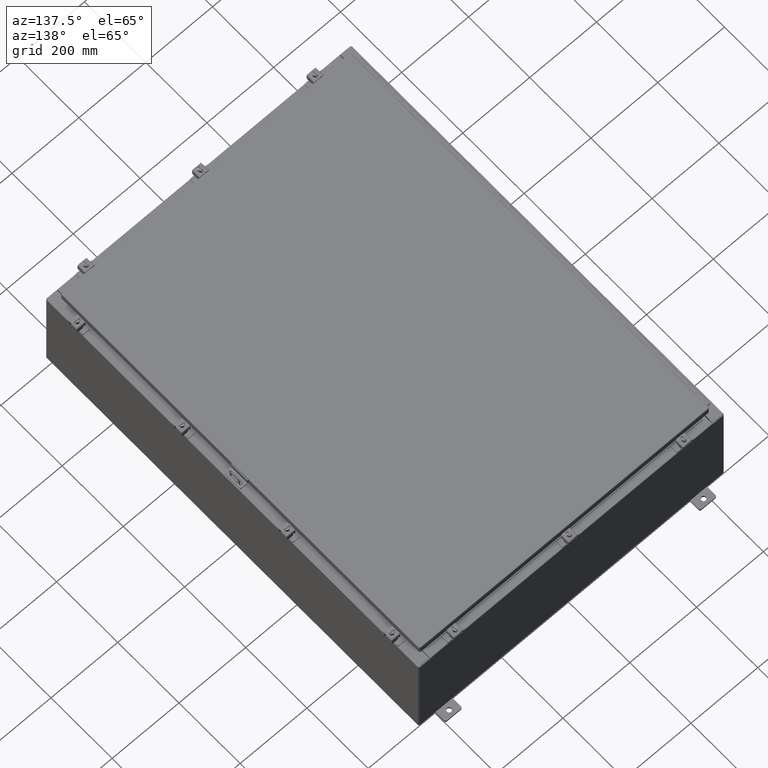
[diagram: clean part render]
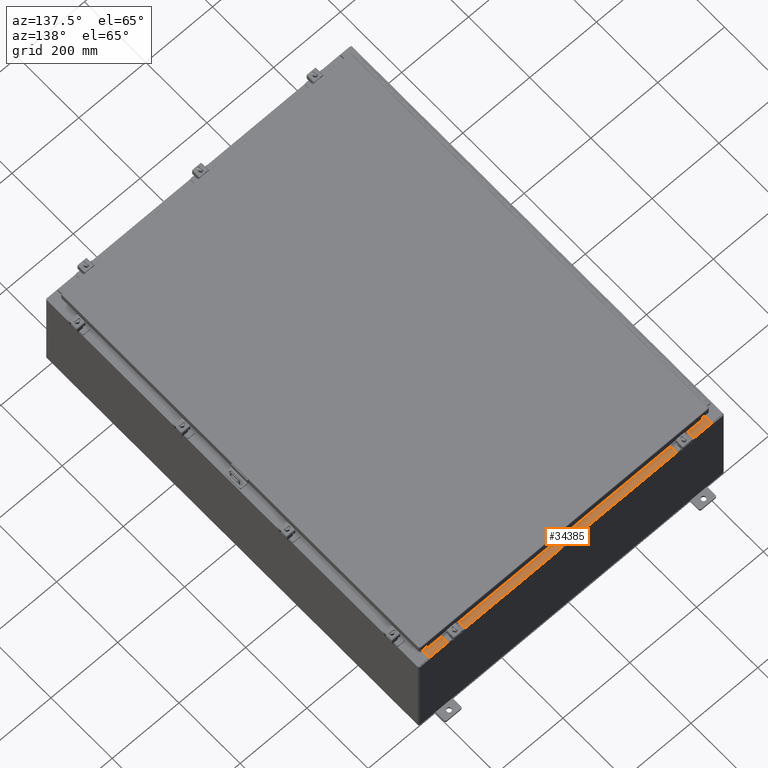
[diagram: same view with one face highlighted and labeled with its STEP entity id]
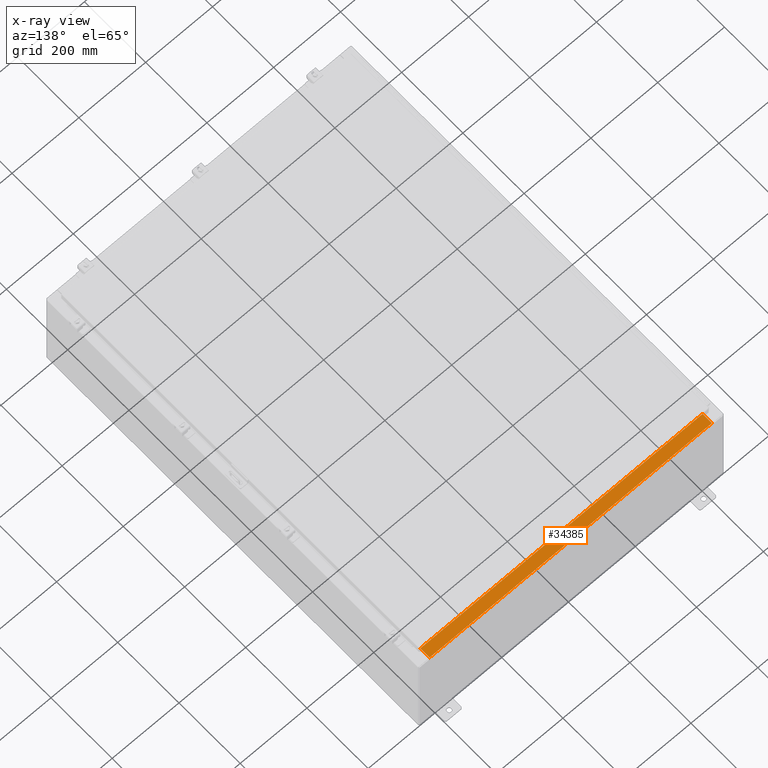
[diagram: x-ray of the same camera — body ghosted, the highlighted face saturated]
A machine part, auxiliary view. The second image highlights one B-rep face of the part: STEP entity #34385.
The next image is the same camera in x-ray: the body ghosted, the highlighted face saturated — about 0% of this face is hidden behind the body in this view.
In plain terms, the highlighted planar face has unit normal (0, 0, 1).
Its self-contained STEP definition (entity closure, byte-faithful):
#2164 = LINE ( 'NONE', #7959, #45145 ) ;
#3981 = CARTESIAN_POINT ( 'NONE',  ( -2.276882898771239300E-018, 1.610972251716581800E-014, 5.999999999999999100 ) ) ;
#7959 = CARTESIAN_POINT ( 'NONE',  ( -16.63719999999999600, -0.07469999999999973900, 5.999999999999999100 ) ) ;
#8244 = CARTESIAN_POINT ( 'NONE',  ( -5.156971724347648400E-018, -0.08769999999999972300, 5.999999999999999100 ) ) ;
#8270 = VERTEX_POINT ( 'NONE', #37192 ) ;
#8324 = DIRECTION ( 'NONE',  ( 0.0000000000000000000, 2.674785894579892700E-015, 1.000000000000000000 ) ) ;
#10229 = VECTOR ( 'NONE', #45162, 39.37007874015748100 ) ;
#10435 = CARTESIAN_POINT ( 'NONE',  ( 16.63720000000000400, -1.287299999999999400, 6.000000000000001800 ) ) ;
#11706 = VERTEX_POINT ( 'NONE', #35213 ) ;
#13149 = DIRECTION ( 'NONE',  ( -1.000000000000000000, 0.0000000000000000000, 0.0000000000000000000 ) ) ;
#15764 = EDGE_CURVE ( 'NONE', #11706, #8270, #17520, .T. ) ;
#17178 = CARTESIAN_POINT ( 'NONE',  ( 16.63720000000000400, -0.08769999999999948700, 5.999999999999999100 ) ) ;
#17520 = LINE ( 'NONE', #10435, #49478 ) ;
#19053 = VECTOR ( 'NONE', #20730, 39.37007874015748100 ) ;
#19386 = ORIENTED_EDGE ( 'NONE', *, *, #30043, .F. ) ;
#20600 = VERTEX_POINT ( 'NONE', #17178 ) ;
#20730 = DIRECTION ( 'NONE',  ( -1.000000000000000000, 3.284023746380717400E-017, -8.784060394284559800E-032 ) ) ;
#21230 = LINE ( 'NONE', #36756, #10229 ) ;
#25600 = EDGE_CURVE ( 'NONE', #20600, #32150, #30083, .T. ) ;
#28946 = PLANE ( 'NONE',  #41632 ) ;
#30043 = EDGE_CURVE ( 'NONE', #8270, #32150, #2164, .T. ) ;
#30083 = LINE ( 'NONE', #8244, #19053 ) ;
#32150 = VERTEX_POINT ( 'NONE', #47572 ) ;
#34385 = ADVANCED_FACE ( 'NONE', ( #49970 ), #28946, .T. ) ;
#35213 = CARTESIAN_POINT ( 'NONE',  ( 16.63720000000000400, -1.287299999999999400, 6.000000000000003600 ) ) ;
#36756 = CARTESIAN_POINT ( 'NONE',  ( 16.63720000000000400, -1.300299999999999800, 6.000000000000003600 ) ) ;
#36894 = ORIENTED_EDGE ( 'NONE', *, *, #15764, .F. ) ;
#37026 = DIRECTION ( 'NONE',  ( -0.0000000000000000000, 1.000000000000000000, -2.674785894579892700E-015 ) ) ;
#37192 = CARTESIAN_POINT ( 'NONE',  ( -16.63719999999999600, -1.287299999999998600, 6.000000000000002700 ) ) ;
#37404 = DIRECTION ( 'NONE',  ( 0.0000000000000000000, -1.000000000000000000, 2.674785894579892700E-015 ) ) ;
#39377 = ORIENTED_EDGE ( 'NONE', *, *, #25600, .T. ) ;
#41632 = AXIS2_PLACEMENT_3D ( 'NONE', #3981, #8324, #37404 ) ;
#45145 = VECTOR ( 'NONE', #37026, 39.37007874015748100 ) ;
#45162 = DIRECTION ( 'NONE',  ( -0.0000000000000000000, -1.000000000000000000, 3.566381192773190000E-015 ) ) ;
#47572 = CARTESIAN_POINT ( 'NONE',  ( -16.63719999999999600, -0.08769999999999972300, 5.999999999999999100 ) ) ;
#48461 = EDGE_LOOP ( 'NONE', ( #19386, #36894, #49505, #39377 ) ) ;
#49478 = VECTOR ( 'NONE', #13149, 39.37007874015748100 ) ;
#49505 = ORIENTED_EDGE ( 'NONE', *, *, #53099, .F. ) ;
#49970 = FACE_OUTER_BOUND ( 'NONE', #48461, .T. ) ;
#53099 = EDGE_CURVE ( 'NONE', #20600, #11706, #21230, .T. ) ;